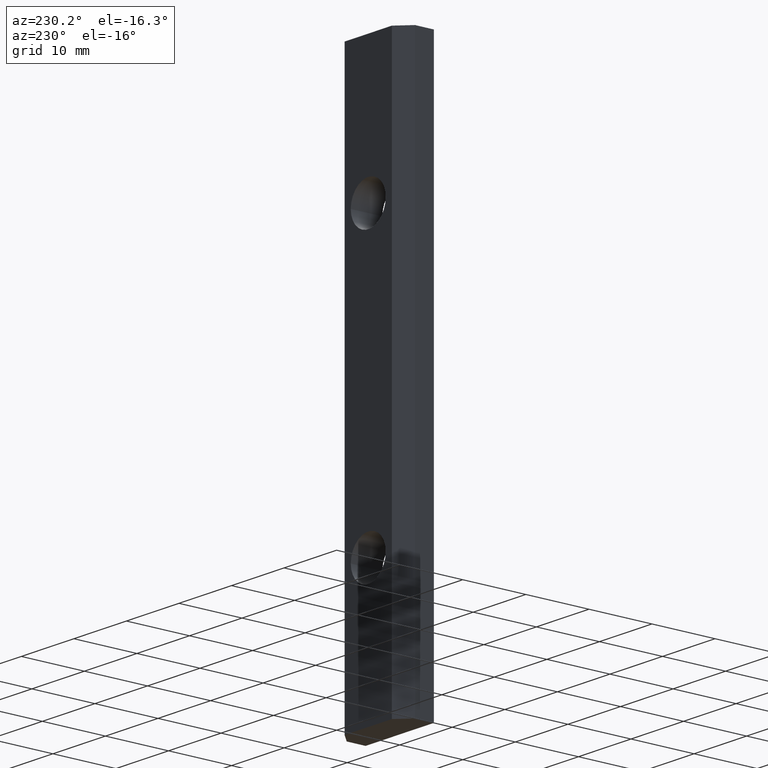
[diagram: clean part render]
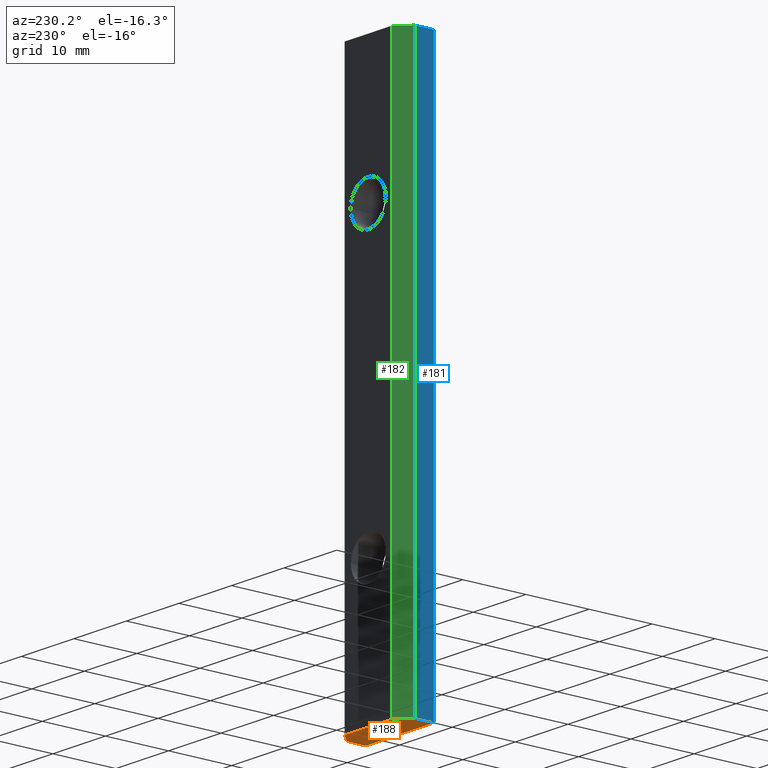
[diagram: same view with three faces highlighted in distinct colors, each labeled with its STEP entity id]
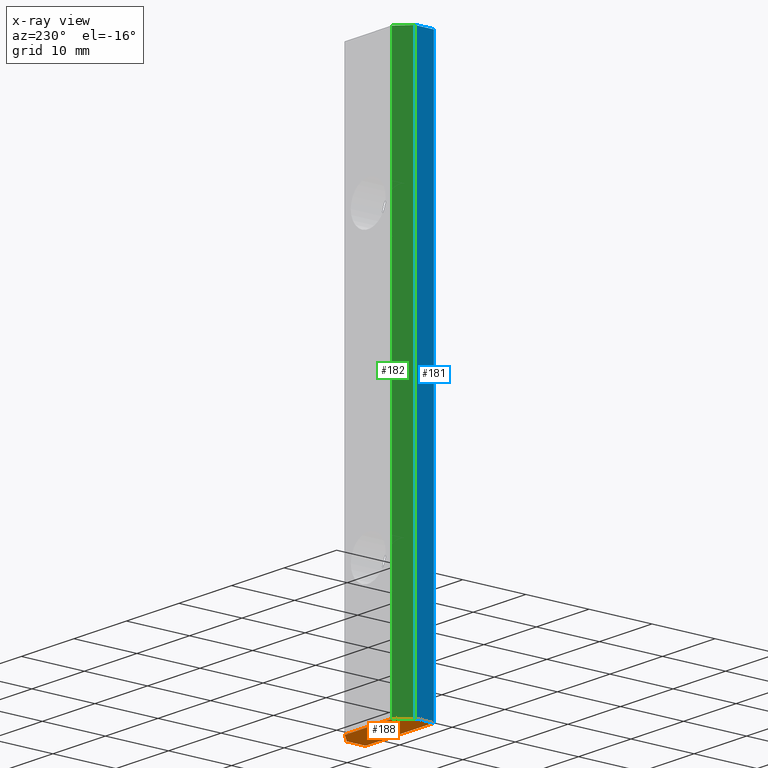
[diagram: x-ray of the same camera — body ghosted, the three highlighted faces saturated]
A machine part, auxiliary view with three faces highlighted in distinct colors.
The next image is the same camera in x-ray (body ghosted, the three faces saturated) — at least one of them is partly hidden behind the body in this view.
Their STEP definitions:

[orange] entity #188 — the highlighted planar face has unit normal (0, 0, 1).
#15=LINE('',#267,#33);
#19=LINE('',#275,#37);
#22=LINE('',#281,#40);
#25=LINE('',#287,#43);
#28=LINE('',#293,#46);
#31=LINE('',#298,#49);
#33=VECTOR('',#221,3.);
#37=VECTOR('',#227,2.82842712474619);
#40=VECTOR('',#232,9.);
#43=VECTOR('',#237,2.82842712474619);
#46=VECTOR('',#242,3.);
#49=VECTOR('',#247,13.);
#58=PLANE('',#204);
#74=FACE_OUTER_BOUND('',#90,.T.);
#90=EDGE_LOOP('',(#171,#172,#173,#174,#175,#176));
#99=VERTEX_POINT('',#265);
#100=VERTEX_POINT('',#266);
#103=VERTEX_POINT('',#274);
#105=VERTEX_POINT('',#280);
#107=VERTEX_POINT('',#286);
#109=VERTEX_POINT('',#292);
#115=EDGE_CURVE('',#99,#100,#15,.T.);
#119=EDGE_CURVE('',#103,#99,#19,.T.);
#122=EDGE_CURVE('',#105,#103,#22,.T.);
#125=EDGE_CURVE('',#107,#105,#25,.T.);
#128=EDGE_CURVE('',#109,#107,#28,.T.);
#131=EDGE_CURVE('',#100,#109,#31,.T.);
#171=ORIENTED_EDGE('',*,*,#131,.F.);
#172=ORIENTED_EDGE('',*,*,#115,.F.);
#173=ORIENTED_EDGE('',*,*,#119,.F.);
#174=ORIENTED_EDGE('',*,*,#122,.F.);
#175=ORIENTED_EDGE('',*,*,#125,.F.);
#176=ORIENTED_EDGE('',*,*,#128,.F.);
#188=ADVANCED_FACE('',(#74),#58,.F.);
#204=AXIS2_PLACEMENT_3D('',#301,#251,#252);
#221=DIRECTION('',(0.,-1.,0.));
#227=DIRECTION('',(-0.707106781186548,-0.707106781186547,0.));
#232=DIRECTION('',(-1.,0.,0.));
#237=DIRECTION('',(-0.707106781186548,0.707106781186547,0.));
#242=DIRECTION('',(0.,1.,0.));
#247=DIRECTION('',(1.,0.,0.));
#251=DIRECTION('center_axis',(0.,0.,1.));
#252=DIRECTION('ref_axis',(1.,0.,0.));
#265=CARTESIAN_POINT('',(-6.5,3.,0.));
#266=CARTESIAN_POINT('',(-6.5,0.,0.));
#267=CARTESIAN_POINT('',(-6.5,3.,0.));
#274=CARTESIAN_POINT('',(-4.5,5.,0.));
#275=CARTESIAN_POINT('',(-4.5,5.,0.));
#280=CARTESIAN_POINT('',(4.5,5.,0.));
#281=CARTESIAN_POINT('',(4.5,5.,0.));
#286=CARTESIAN_POINT('',(6.5,3.,0.));
#287=CARTESIAN_POINT('',(6.5,3.,0.));
#292=CARTESIAN_POINT('',(6.5,0.,0.));
#293=CARTESIAN_POINT('',(6.5,0.,0.));
#298=CARTESIAN_POINT('',(-6.5,0.,0.));
#301=CARTESIAN_POINT('Origin',(1.23699508916735E-16,2.27672546073212,0.));

[blue] entity #181 — the highlighted planar face has unit normal (-1, 0, 0).
#15=LINE('',#267,#33);
#16=LINE('',#269,#34);
#17=LINE('',#271,#35);
#18=LINE('',#272,#36);
#33=VECTOR('',#221,3.);
#34=VECTOR('',#222,88.);
#35=VECTOR('',#223,3.);
#36=VECTOR('',#224,88.);
#51=PLANE('',#197);
#67=FACE_OUTER_BOUND('',#79,.T.);
#79=EDGE_LOOP('',(#137,#138,#139,#140));
#99=VERTEX_POINT('',#265);
#100=VERTEX_POINT('',#266);
#101=VERTEX_POINT('',#268);
#102=VERTEX_POINT('',#270);
#115=EDGE_CURVE('',#99,#100,#15,.T.);
#116=EDGE_CURVE('',#100,#101,#16,.T.);
#117=EDGE_CURVE('',#102,#101,#17,.T.);
#118=EDGE_CURVE('',#99,#102,#18,.T.);
#137=ORIENTED_EDGE('',*,*,#115,.T.);
#138=ORIENTED_EDGE('',*,*,#116,.T.);
#139=ORIENTED_EDGE('',*,*,#117,.F.);
#140=ORIENTED_EDGE('',*,*,#118,.F.);
#181=ADVANCED_FACE('',(#67),#51,.T.);
#197=AXIS2_PLACEMENT_3D('',#264,#219,#220);
#219=DIRECTION('center_axis',(-1.,0.,0.));
#220=DIRECTION('ref_axis',(0.,-1.,0.));
#221=DIRECTION('',(0.,-1.,0.));
#222=DIRECTION('',(0.,0.,1.));
#223=DIRECTION('',(0.,-1.,0.));
#224=DIRECTION('',(0.,0.,1.));
#264=CARTESIAN_POINT('Origin',(-6.5,3.,0.));
#265=CARTESIAN_POINT('',(-6.5,3.,0.));
#266=CARTESIAN_POINT('',(-6.5,0.,0.));
#267=CARTESIAN_POINT('',(-6.5,3.,0.));
#268=CARTESIAN_POINT('',(-6.5,0.,88.));
#269=CARTESIAN_POINT('',(-6.5,0.,0.));
#270=CARTESIAN_POINT('',(-6.5,3.,88.));
#271=CARTESIAN_POINT('',(-6.5,3.,88.));
#272=CARTESIAN_POINT('',(-6.5,3.,0.));

[green] entity #182 — the highlighted planar face has unit normal (-0.7071, 0.7071, 0).
#18=LINE('',#272,#36);
#19=LINE('',#275,#37);
#20=LINE('',#277,#38);
#21=LINE('',#278,#39);
#36=VECTOR('',#224,88.);
#37=VECTOR('',#227,2.82842712474619);
#38=VECTOR('',#228,2.82842712474619);
#39=VECTOR('',#229,88.);
#52=PLANE('',#198);
#68=FACE_OUTER_BOUND('',#80,.T.);
#80=EDGE_LOOP('',(#141,#142,#143,#144));
#99=VERTEX_POINT('',#265);
#102=VERTEX_POINT('',#270);
#103=VERTEX_POINT('',#274);
#104=VERTEX_POINT('',#276);
#118=EDGE_CURVE('',#99,#102,#18,.T.);
#119=EDGE_CURVE('',#103,#99,#19,.T.);
#120=EDGE_CURVE('',#104,#102,#20,.T.);
#121=EDGE_CURVE('',#103,#104,#21,.T.);
#141=ORIENTED_EDGE('',*,*,#119,.T.);
#142=ORIENTED_EDGE('',*,*,#118,.T.);
#143=ORIENTED_EDGE('',*,*,#120,.F.);
#144=ORIENTED_EDGE('',*,*,#121,.F.);
#182=ADVANCED_FACE('',(#68),#52,.T.);
#198=AXIS2_PLACEMENT_3D('',#273,#225,#226);
#224=DIRECTION('',(0.,0.,1.));
#225=DIRECTION('center_axis',(-0.707106781186547,0.707106781186548,0.));
#226=DIRECTION('ref_axis',(-0.707106781186548,-0.707106781186547,0.));
#227=DIRECTION('',(-0.707106781186548,-0.707106781186547,0.));
#228=DIRECTION('',(-0.707106781186548,-0.707106781186547,0.));
#229=DIRECTION('',(0.,0.,1.));
#265=CARTESIAN_POINT('',(-6.5,3.,0.));
#270=CARTESIAN_POINT('',(-6.5,3.,88.));
#272=CARTESIAN_POINT('',(-6.5,3.,0.));
#273=CARTESIAN_POINT('Origin',(-4.5,5.,0.));
#274=CARTESIAN_POINT('',(-4.5,5.,0.));
#275=CARTESIAN_POINT('',(-4.5,5.,0.));
#276=CARTESIAN_POINT('',(-4.5,5.,88.));
#277=CARTESIAN_POINT('',(-4.5,5.,88.));
#278=CARTESIAN_POINT('',(-4.5,5.,0.));